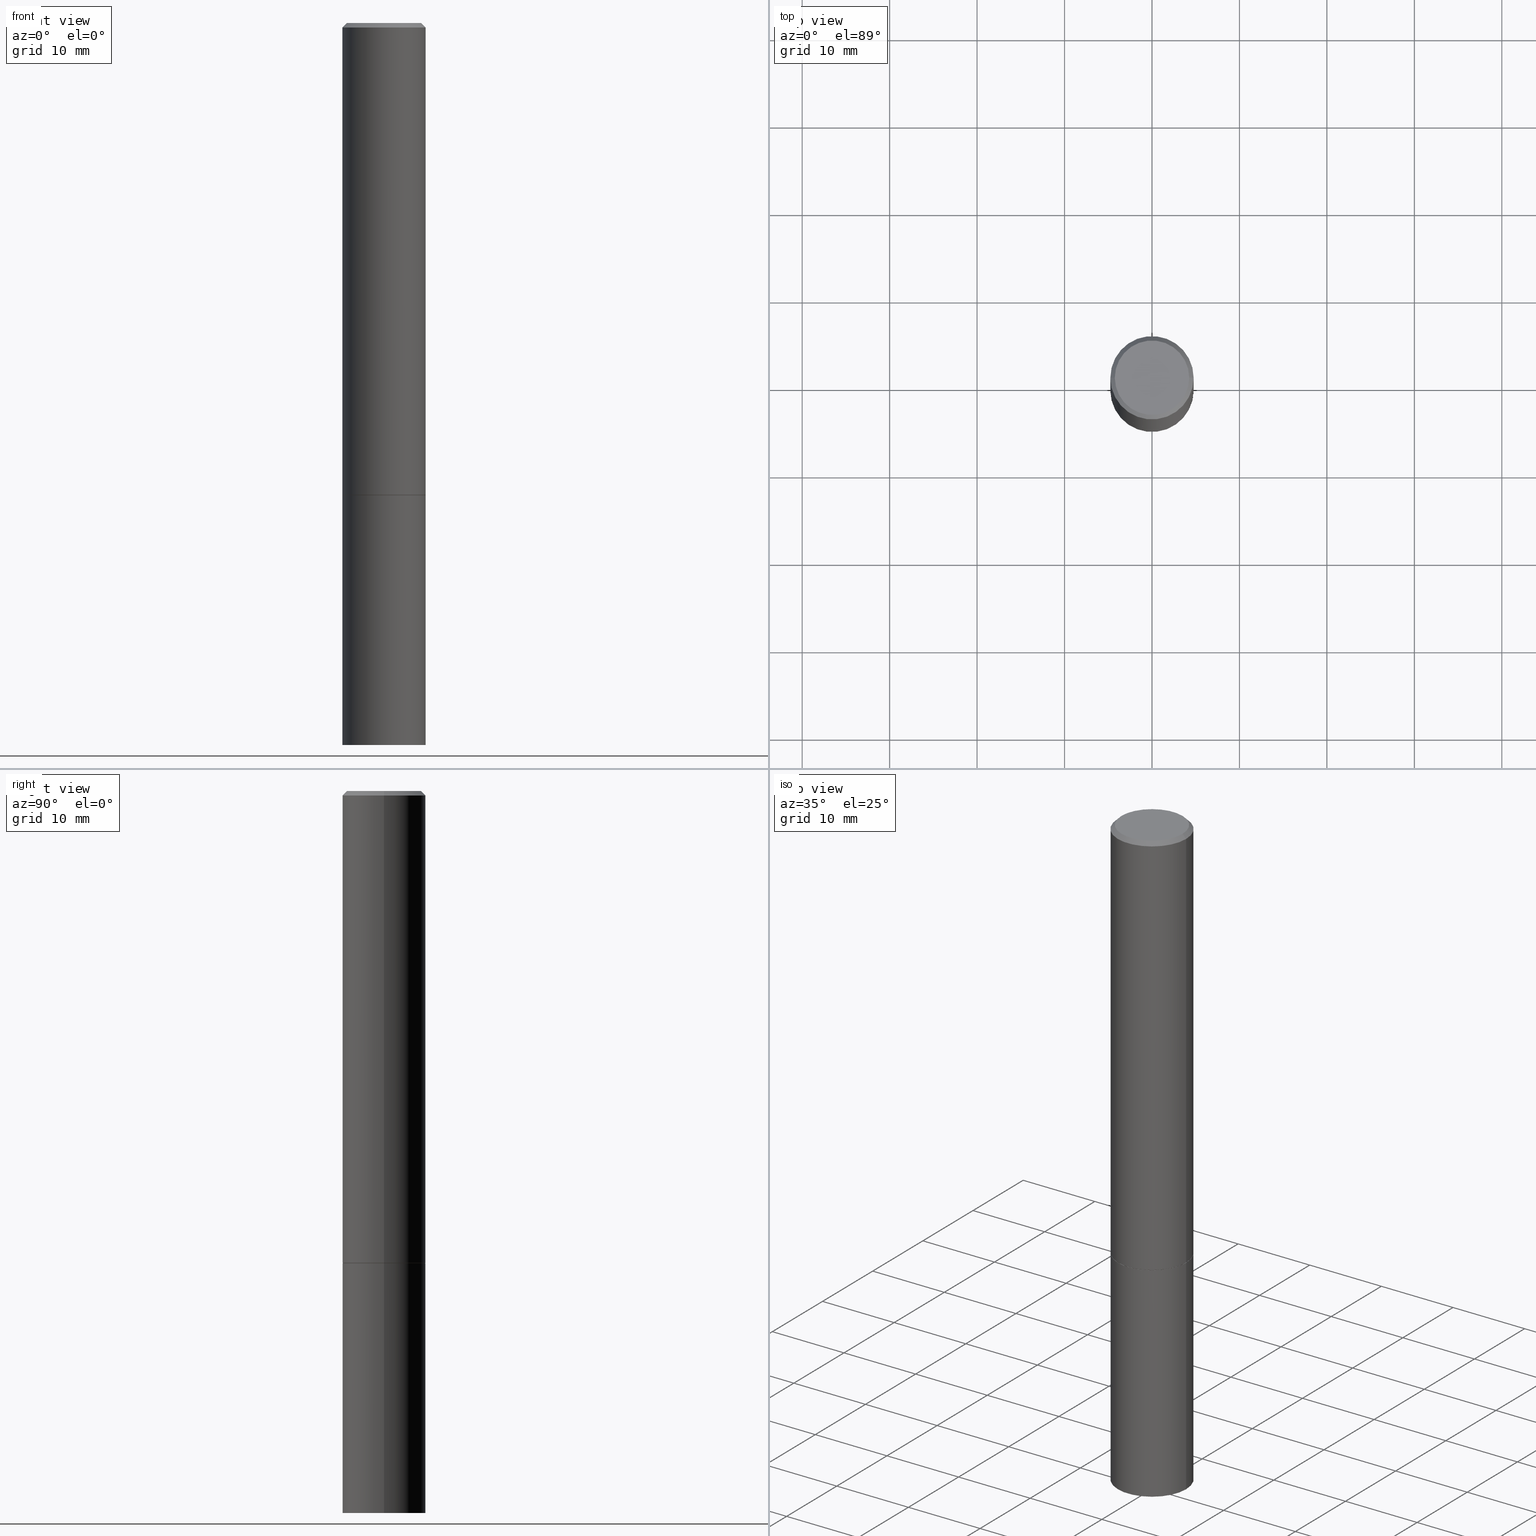
[diagram: canonical four-view strip — front | top / right | iso, engineering-drawing reading convention]
A machine part, canonical four-view strip (front | top / right | iso — engineering-drawing reading convention). The complete STEP part file that produces these views, byte-faithful:
ISO-10303-21;
HEADER;
FILE_DESCRIPTION (( 'STEP AP203' ),
    '1' );
FILE_NAME ('77149.STEP',
    '2024-02-29T15:02:21',
    ( '' ),
    ( '' ),
    'SwSTEP 2.0',
    'SolidWorks 2023',
    '' );
FILE_SCHEMA (( 'CONFIG_CONTROL_DESIGN' ));
ENDSEC;

DATA;
#1 = DIRECTION ( 'NONE',  ( -2.445468806185136597E-29, 3.491481338843145583E-15, 1.000000000000000000 ) ) ;
#2 = CARTESIAN_POINT ( 'NONE',  ( 4.890937612370283668E-31, -6.982962677686305168E-17, -0.02000000000000004205 ) ) ;
#3 = EDGE_CURVE ( 'NONE', #194, #243, #148, .T. ) ;
#4 = CIRCLE ( 'NONE', #205, 0.1864999999999999714 ) ;
#5 = CARTESIAN_POINT ( 'NONE',  ( 5.194175744337229665E-29, -7.415906363702840616E-15, -2.123999999999999666 ) ) ;
#6 = DIRECTION ( 'NONE',  ( -1.000000000000000000, 6.982962677686265133E-15, 0.000000000000000000 ) ) ;
#7 = EDGE_CURVE ( 'NONE', #15, #269, #129, .T. ) ;
#8 = DIRECTION ( 'NONE',  ( 1.000000000000000000, -6.982962677686261189E-15, 0.000000000000000000 ) ) ;
#9 = EDGE_CURVE ( 'NONE', #21, #135, #232, .T. ) ;
#10 = UNCERTAINTY_MEASURE_WITH_UNIT (LENGTH_MEASURE( 1.000000000000000082E-05 ), #32, 'distance_accuracy_value', 'NONE');
#11 = AXIS2_PLACEMENT_3D ( 'NONE', #72, #44, #6 ) ;
#12 = CARTESIAN_POINT ( 'NONE',  ( 5.196621213143415268E-29, -7.419397845041683624E-15, -2.125000000000000000 ) ) ;
#13 = DIRECTION ( 'NONE',  ( -2.445468806185136877E-29, 3.491481338843145188E-15, 1.000000000000000000 ) ) ;
#14 = FACE_OUTER_BOUND ( 'NONE', #266, .T. ) ;
#15 = VERTEX_POINT ( 'NONE', #319 ) ;
#16 = EDGE_CURVE ( 'NONE', #152, #94, #4, .T. ) ;
#17 = VERTEX_POINT ( 'NONE', #69 ) ;
#18 = DIRECTION ( 'NONE',  ( -2.445468806185136597E-29, 3.491481338843145583E-15, 1.000000000000000000 ) ) ;
#19 = ORIENTED_EDGE ( 'NONE', *, *, #229, .T. ) ;
#20 = DIRECTION ( 'NONE',  ( -0.7071067811865353603, 7.493145998870309984E-15, 0.7071067811865595631 ) ) ;
#21 = VERTEX_POINT ( 'NONE', #120 ) ;
#22 = DIRECTION ( 'NONE',  ( -2.445468806185136597E-29, 3.491481338843145583E-15, 1.000000000000000000 ) ) ;
#23 = VERTEX_POINT ( 'NONE', #289 ) ;
#24 = PLANE ( 'NONE',  #359 ) ;
#25 = DATE_AND_TIME ( #93, #337 ) ;
#26 = EDGE_LOOP ( 'NONE', ( #106, #350, #50, #301 ) ) ;
#27 = APPROVAL_ROLE ( '' ) ;
#28 = CARTESIAN_POINT ( 'NONE',  ( -0.1875000000000000278, -8.051088468590765387E-15, -3.250000000000000000 ) ) ;
#29 = AXIS2_PLACEMENT_3D ( 'NONE', #253, #1, #86 ) ;
#30 = CIRCLE ( 'NONE', #226, 0.1875000000000000278 ) ;
#31 = CC_DESIGN_SECURITY_CLASSIFICATION ( #360, ( #308 ) ) ;
#32 =( CONVERSION_BASED_UNIT ( 'INCH', #133 ) LENGTH_UNIT ( ) NAMED_UNIT ( #176 ) );
#33 = EDGE_CURVE ( 'NONE', #358, #243, #177, .T. ) ;
#34 = CC_DESIGN_PERSON_AND_ORGANIZATION_ASSIGNMENT ( #256, #215, ( #244 ) ) ;
#35 = EDGE_CURVE ( 'NONE', #94, #152, #336, .T. ) ;
#36 = CYLINDRICAL_SURFACE ( 'NONE', #104, 0.1874999999999998890 ) ;
#37 = CARTESIAN_POINT ( 'NONE',  ( 0.1864999999999999714, -8.721720384430172617E-15, -2.125000000000000000 ) ) ;
#38 = CARTESIAN_POINT ( 'NONE',  ( 5.196621213143415268E-29, -7.419397845041683624E-15, -2.125000000000000000 ) ) ;
#39 = CARTESIAN_POINT ( 'NONE',  ( 0.1875000000000000278, -8.725211865769015625E-15, -2.123999999999999666 ) ) ;
#40 = AXIS2_PLACEMENT_3D ( 'NONE', #345, #321, #323 ) ;
#41 = DIRECTION ( 'NONE',  ( -2.445468806185136597E-29, 3.491481338843145583E-15, 1.000000000000000000 ) ) ;
#42 = CC_DESIGN_APPROVAL ( #335, ( #244 ) ) ;
#43 = LINE ( 'NONE', #147, #286 ) ;
#44 = DIRECTION ( 'NONE',  ( 2.445468806185136597E-29, -3.491481338843145583E-15, -1.000000000000000000 ) ) ;
#45 = APPROVAL_ROLE ( '' ) ;
#46 = EDGE_CURVE ( 'NONE', #152, #358, #97, .T. ) ;
#47 = DIRECTION ( 'NONE',  ( 2.438088387897960049E-29, -3.491481338843145188E-15, -1.000000000000000000 ) ) ;
#48 = CARTESIAN_POINT ( 'NONE',  ( -1.043851414335219820E-46, 1.490343170380447200E-32, 4.268512490100411279E-18 ) ) ;
#49 = ORIENTED_EDGE ( 'NONE', *, *, #92, .F. ) ;
#50 = ORIENTED_EDGE ( 'NONE', *, *, #277, .F. ) ;
#51 = AXIS2_PLACEMENT_3D ( 'NONE', #364, #260, #320 ) ;
#52 = ORIENTED_EDGE ( 'NONE', *, *, #74, .T. ) ;
#53 = ORIENTED_EDGE ( 'NONE', *, *, #3, .T. ) ;
#54 = DATE_AND_TIME ( #173, #198 ) ;
#55 = CYLINDRICAL_SURFACE ( 'NONE', #29, 0.1875000000000000278 ) ;
#56 = CIRCLE ( 'NONE', #324, 0.1674999999999997602 ) ;
#57 = DATE_AND_TIME ( #310, #275 ) ;
#58 = PERSON_AND_ORGANIZATION_ROLE ( 'creator' ) ;
#59 = DIRECTION ( 'NONE',  ( -2.445468806185136877E-29, 3.491481338843145188E-15, 1.000000000000000000 ) ) ;
#60 = DATE_AND_TIME ( #313, #67 ) ;
#61 = ADVANCED_FACE ( 'NONE', ( #206 ), #77, .F. ) ;
#62 = COORDINATED_UNIVERSAL_TIME_OFFSET ( 5, 0, .BEHIND. ) ;
#63 = PRODUCT ( '77149', '77149', '', ( #169 ) ) ;
#64 = DESIGN_CONTEXT ( 'detailed design', #312, 'design' ) ;
#65 = DIRECTION ( 'NONE',  ( 1.000000000000000000, -6.982962677686266711E-15, 0.000000000000000000 ) ) ;
#66 = CLOSED_SHELL ( 'NONE', ( #114, #362, #150, #303, #68, #267, #172, #61 ) ) ;
#67 = LOCAL_TIME ( 10, 2, 21.00000000000000000, #309 ) ;
#68 = ADVANCED_FACE ( 'NONE', ( #71 ), #36, .T. ) ;
#69 = CARTESIAN_POINT ( 'NONE',  ( 0.1875000000000000278, -1.265661985330639786E-14, -3.250000000000000000 ) ) ;
#70 = CARTESIAN_POINT ( 'NONE',  ( 7.947773620101693940E-29, -1.134731435124022443E-14, -3.250000000000000000 ) ) ;
#71 = FACE_OUTER_BOUND ( 'NONE', #80, .T. ) ;
#72 = CARTESIAN_POINT ( 'NONE',  ( 4.890937612370283668E-31, -6.982962677686305168E-17, -0.02000000000000004205 ) ) ;
#73 = DIRECTION ( 'NONE',  ( -2.445468806185136597E-29, 3.491481338843145583E-15, 1.000000000000000000 ) ) ;
#74 = EDGE_CURVE ( 'NONE', #17, #135, #43, .T. ) ;
#75 = APPROVAL_ROLE ( '' ) ;
#76 = AXIS2_PLACEMENT_3D ( 'NONE', #282, #280, #283 ) ;
#77 = PLANE ( 'NONE',  #40 ) ;
#78 = ORIENTED_EDGE ( 'NONE', *, *, #74, .F. ) ;
#79 = ORIENTED_EDGE ( 'NONE', *, *, #107, .F. ) ;
#80 = EDGE_LOOP ( 'NONE', ( #305, #130, #190, #103 ) ) ;
#81 = AXIS2_PLACEMENT_3D ( 'NONE', #2, #341, #87 ) ;
#82 = ORIENTED_EDGE ( 'NONE', *, *, #261, .T. ) ;
#83 = CARTESIAN_POINT ( 'NONE',  ( 4.890937612370283668E-31, -6.982962677686305168E-17, -0.02000000000000004205 ) ) ;
#84 = COORDINATED_UNIVERSAL_TIME_OFFSET ( 5, 0, .BEHIND. ) ;
#85 = VECTOR ( 'NONE', #203, 39.37007874015748143 ) ;
#86 = DIRECTION ( 'NONE',  ( 1.000000000000000000, -6.982962677686265922E-15, 4.876176775795935793E-29 ) ) ;
#87 = DIRECTION ( 'NONE',  ( 1.000000000000000000, -6.982962677686265133E-15, 0.000000000000000000 ) ) ;
#88 = ADVANCED_FACE ( 'NONE', ( #125 ), #236, .F. ) ;
#89 = AXIS2_PLACEMENT_3D ( 'NONE', #334, #241, #278 ) ;
#90 = CALENDAR_DATE ( 2024, 29, 2 ) ;
#91 = CARTESIAN_POINT ( 'NONE',  ( -0.1874999999999997502, 1.239475875289309935E-15, -0.02000000000000004205 ) ) ;
#92 = EDGE_CURVE ( 'NONE', #135, #21, #268, .T. ) ;
#93 = CALENDAR_DATE ( 2024, 29, 2 ) ;
#94 = VERTEX_POINT ( 'NONE', #221 ) ;
#95 = SHAPE_DEFINITION_REPRESENTATION ( #166, #361 ) ;
#96 = PERSON_AND_ORGANIZATION ( #234, #171 ) ;
#97 = LINE ( 'NONE', #37, #109 ) ;
#98 = APPROVAL_STATUS ( 'not_yet_approved' ) ;
#99 = CARTESIAN_POINT ( 'NONE',  ( 0.000000000000000000, 0.000000000000000000, 0.000000000000000000 ) ) ;
#100 = DIRECTION ( 'NONE',  ( 1.000000000000000000, -6.982962677686269077E-15, 0.000000000000000000 ) ) ;
#101 = DIRECTION ( 'NONE',  ( -1.000000000000000000, 6.982962677686265922E-15, -4.876176775795935793E-29 ) ) ;
#102 = CARTESIAN_POINT ( 'NONE',  ( 0.1874999999999997502, -1.356173001359023494E-15, -0.02000000000000004205 ) ) ;
#103 = ORIENTED_EDGE ( 'NONE', *, *, #168, .F. ) ;
#104 = AXIS2_PLACEMENT_3D ( 'NONE', #292, #73, #293 ) ;
#105 = FACE_OUTER_BOUND ( 'NONE', #240, .T. ) ;
#106 = ORIENTED_EDGE ( 'NONE', *, *, #179, .T. ) ;
#107 = EDGE_CURVE ( 'NONE', #194, #15, #196, .T. ) ;
#108 = EDGE_LOOP ( 'NONE', ( #331, #156, #297, #346 ) ) ;
#109 = VECTOR ( 'NONE', #235, 39.37007874015748854 ) ;
#110 = FACE_OUTER_BOUND ( 'NONE', #238, .T. ) ;
#111 = PERSON_AND_ORGANIZATION ( #234, #171 ) ;
#112 = COORDINATED_UNIVERSAL_TIME_OFFSET ( 5, 0, .BEHIND. ) ;
#113 = CARTESIAN_POINT ( 'NONE',  ( 5.194175744337229665E-29, -7.415906363702840616E-15, -2.123999999999999666 ) ) ;
#114 = ADVANCED_FACE ( 'NONE', ( #300 ), #274, .T. ) ;
#115 = CONICAL_SURFACE ( 'NONE', #175, 0.1874999999999997502, 0.7853981633974469467 ) ;
#116 = APPROVAL_PERSON_ORGANIZATION ( #140, #344, #45 ) ;
#117 = MANIFOLD_SOLID_BREP ( 'Body-Move/Copy2[2]', #66 ) ;
#118 = SECURITY_CLASSIFICATION_LEVEL ( 'unclassified' ) ;
#119 =( LENGTH_UNIT ( ) NAMED_UNIT ( * ) SI_UNIT ( $, .METRE. ) );
#120 = CARTESIAN_POINT ( 'NONE',  ( -0.1875000000000000278, -8.051088468590765387E-15, -2.125000000000000000 ) ) ;
#121 = CIRCLE ( 'NONE', #220, 0.1875000000000000278 ) ;
#122 = ORIENTED_EDGE ( 'NONE', *, *, #261, .F. ) ;
#123 = DIRECTION ( 'NONE',  ( 1.000000000000000000, -6.982962677686265922E-15, 4.875936752492899929E-29 ) ) ;
#124 = CC_DESIGN_DATE_AND_TIME_ASSIGNMENT ( #60, #163, ( #360 ) ) ;
#125 = FACE_OUTER_BOUND ( 'NONE', #181, .T. ) ;
#126 = DIRECTION ( 'NONE',  ( -2.445468806185136597E-29, 3.491481338843145583E-15, 1.000000000000000000 ) ) ;
#127 = CARTESIAN_POINT ( 'NONE',  ( -0.1874999999999997502, 1.239475875289309935E-15, -0.02000000000000004205 ) ) ;
#128 = ORIENTED_EDGE ( 'NONE', *, *, #3, .F. ) ;
#129 = LINE ( 'NONE', #91, #85 ) ;
#130 = ORIENTED_EDGE ( 'NONE', *, *, #366, .T. ) ;
#131 = AXIS2_PLACEMENT_3D ( 'NONE', #264, #354, #189 ) ;
#132 = EDGE_CURVE ( 'NONE', #94, #23, #218, .T. ) ;
#133 = LENGTH_MEASURE_WITH_UNIT ( LENGTH_MEASURE( 0.02539999999999999897 ), #119 );
#134 = VERTEX_POINT ( 'NONE', #28 ) ;
#135 = VERTEX_POINT ( 'NONE', #216 ) ;
#136 =( NAMED_UNIT ( * ) PLANE_ANGLE_UNIT ( ) SI_UNIT ( $, .RADIAN. ) );
#137 = AXIS2_PLACEMENT_3D ( 'NONE', #38, #230, #209 ) ;
#138 = CARTESIAN_POINT ( 'NONE',  ( -0.1874999999999998890, 1.332267629550187060E-15, -9.223003294227942385E-30 ) ) ;
#139 = FACE_OUTER_BOUND ( 'NONE', #272, .T. ) ;
#140 = PERSON_AND_ORGANIZATION ( #234, #171 ) ;
#141 = CONICAL_SURFACE ( 'NONE', #11, 0.1874999999999997502, 0.7853981633974469467 ) ;
#142 = CC_DESIGN_APPROVAL ( #344, ( #360 ) ) ;
#143 = PERSON_AND_ORGANIZATION ( #234, #171 ) ;
#144 = FACE_OUTER_BOUND ( 'NONE', #325, .T. ) ;
#145 = VECTOR ( 'NONE', #287, 39.37007874015748143 ) ;
#146 = AXIS2_PLACEMENT_3D ( 'NONE', #99, #41, #317 ) ;
#147 = CARTESIAN_POINT ( 'NONE',  ( 0.1875000000000000278, -1.309305502066175008E-15, 9.142831454617381013E-30 ) ) ;
#148 = LINE ( 'NONE', #102, #183 ) ;
#149 = ORIENTED_EDGE ( 'NONE', *, *, #107, .T. ) ;
#150 = ADVANCED_FACE ( 'NONE', ( #110 ), #115, .T. ) ;
#151 = CONICAL_SURFACE ( 'NONE', #252, 0.1864999999999999714, 0.7853981633974311816 ) ;
#152 = VERTEX_POINT ( 'NONE', #159 ) ;
#153 = DIRECTION ( 'NONE',  ( -1.000000000000000000, 6.982962677686265922E-15, -4.876176775795935793E-29 ) ) ;
#154 = ORIENTED_EDGE ( 'NONE', *, *, #229, .F. ) ;
#155 = PRODUCT_RELATED_PRODUCT_CATEGORY ( 'detail', '', ( #63 ) ) ;
#156 = ORIENTED_EDGE ( 'NONE', *, *, #132, .T. ) ;
#157 = AXIS2_PLACEMENT_3D ( 'NONE', #326, #348, #322 ) ;
#158 = APPROVAL_STATUS ( 'not_yet_approved' ) ;
#159 = CARTESIAN_POINT ( 'NONE',  ( 0.1864999999999999714, -8.721720384430172617E-15, -2.125000000000000000 ) ) ;
#160 = APPROVAL ( #158, 'UNSPECIFIED' ) ;
#161 = APPROVAL_DATE_TIME ( #54, #160 ) ;
#162 = AXIS2_PLACEMENT_3D ( 'NONE', #70, #291, #8 ) ;
#163 = DATE_TIME_ROLE ( 'classification_date' ) ;
#164 = PERSON_AND_ORGANIZATION ( #234, #171 ) ;
#165 = EDGE_CURVE ( 'NONE', #23, #269, #273, .T. ) ;
#166 = PRODUCT_DEFINITION_SHAPE ( 'NONE', 'NONE',  #244 ) ;
#167 = PERSON_AND_ORGANIZATION_ROLE ( 'design_supplier' ) ;
#168 = EDGE_CURVE ( 'NONE', #269, #243, #279, .T. ) ;
#169 = MECHANICAL_CONTEXT ( 'NONE', #247, 'mechanical' ) ;
#170 = CIRCLE ( 'NONE', #294, 0.1875000000000000278 ) ;
#171 = ORGANIZATION ( 'UNSPECIFIED', 'UNSPECIFIED', '' ) ;
#172 = ADVANCED_FACE ( 'NONE', ( #144 ), #24, .F. ) ;
#173 = CALENDAR_DATE ( 2024, 29, 2 ) ;
#174 = CARTESIAN_POINT ( 'NONE',  ( 0.1874999999999998890, -1.309305502066174022E-15, 9.142831454617374006E-30 ) ) ;
#175 = AXIS2_PLACEMENT_3D ( 'NONE', #83, #306, #363 ) ;
#176 = DIMENSIONAL_EXPONENTS ( 1.000000000000000000, 0.000000000000000000, 0.000000000000000000, 0.000000000000000000, 0.000000000000000000, 0.000000000000000000, 0.000000000000000000 ) ;
#177 = LINE ( 'NONE', #174, #145 ) ;
#178 = EDGE_LOOP ( 'NONE', ( #271, #185, #49, #78 ) ) ;
#179 = EDGE_CURVE ( 'NONE', #358, #23, #121, .T. ) ;
#180 = CARTESIAN_POINT ( 'NONE',  ( 1.309305502066254683E-15, 0.1874999999999886757, -3.250000000000000444 ) ) ;
#181 = EDGE_LOOP ( 'NONE', ( #262, #217 ) ) ;
#182 = AXIS2_PLACEMENT_3D ( 'NONE', #12, #208, #65 ) ;
#183 = VECTOR ( 'NONE', #259, 39.37007874015748143 ) ;
#184 = LOCAL_TIME ( 10, 2, 21.00000000000000000, #186 ) ;
#185 = ORIENTED_EDGE ( 'NONE', *, *, #210, .T. ) ;
#186 = COORDINATED_UNIVERSAL_TIME_OFFSET ( 5, 0, .BEHIND. ) ;
#187 = ORIENTED_EDGE ( 'NONE', *, *, #168, .T. ) ;
#188 = CC_DESIGN_PERSON_AND_ORGANIZATION_ASSIGNMENT ( #284, #58, ( #308 ) ) ;
#189 = DIRECTION ( 'NONE',  ( 1.000000000000000000, -6.982962677686266711E-15, 0.000000000000000000 ) ) ;
#190 = ORIENTED_EDGE ( 'NONE', *, *, #33, .T. ) ;
#191 = APPROVAL_DATE_TIME ( #290, #344 ) ;
#192 = ORIENTED_EDGE ( 'NONE', *, *, #16, .F. ) ;
#193 = DIRECTION ( 'NONE',  ( 1.000000000000000000, -6.982962677686269077E-15, 0.000000000000000000 ) ) ;
#194 = VERTEX_POINT ( 'NONE', #311 ) ;
#195 = DATE_TIME_ROLE ( 'creation_date' ) ;
#196 = CIRCLE ( 'NONE', #89, 0.1674999999999997602 ) ;
#197 = DIRECTION ( 'NONE',  ( -2.445468806185136597E-29, 3.491481338843145583E-15, 1.000000000000000000 ) ) ;
#198 = LOCAL_TIME ( 10, 2, 21.00000000000000000, #112 ) ;
#199 = CARTESIAN_POINT ( 'NONE',  ( -0.1875000000000000278, 1.332267629550188046E-15, -9.223003294227947991E-30 ) ) ;
#200 = FACE_OUTER_BOUND ( 'NONE', #178, .T. ) ;
#201 = AXIS2_PLACEMENT_3D ( 'NONE', #180, #213, #101 ) ;
#202 = ADVANCED_FACE ( 'NONE', ( #139 ), #55, .T. ) ;
#203 = DIRECTION ( 'NONE',  ( -0.7071067811865465735, 2.468850131082246805E-15, -0.7071067811865484609 ) ) ;
#204 = DIRECTION ( 'NONE',  ( 1.000000000000000000, -6.982962677686261189E-15, 0.000000000000000000 ) ) ;
#205 = AXIS2_PLACEMENT_3D ( 'NONE', #257, #315, #100 ) ;
#206 = FACE_OUTER_BOUND ( 'NONE', #330, .T. ) ;
#207 = PERSON_AND_ORGANIZATION_ROLE ( 'design_owner' ) ;
#208 = DIRECTION ( 'NONE',  ( -2.445468806185136597E-29, 3.491481338843145583E-15, 1.000000000000000000 ) ) ;
#209 = DIRECTION ( 'NONE',  ( 1.000000000000000000, -6.982962677686269077E-15, 0.000000000000000000 ) ) ;
#210 = EDGE_CURVE ( 'NONE', #134, #21, #223, .T. ) ;
#211 = AXIS2_PLACEMENT_3D ( 'NONE', #295, #47, #153 ) ;
#212 = ORIENTED_EDGE ( 'NONE', *, *, #35, .F. ) ;
#213 = DIRECTION ( 'NONE',  ( 2.438088387897960049E-29, -3.491481338843145188E-15, -1.000000000000000000 ) ) ;
#214 = ORIENTED_EDGE ( 'NONE', *, *, #46, .T. ) ;
#215 = PERSON_AND_ORGANIZATION_ROLE ( 'creator' ) ;
#216 = CARTESIAN_POINT ( 'NONE',  ( 0.1875000000000000278, -8.728703347107858632E-15, -2.125000000000000000 ) ) ;
#217 = ORIENTED_EDGE ( 'NONE', *, *, #9, .T. ) ;
#218 = LINE ( 'NONE', #245, #307 ) ;
#219 = ORIENTED_EDGE ( 'NONE', *, *, #9, .F. ) ;
#220 = AXIS2_PLACEMENT_3D ( 'NONE', #113, #197, #342 ) ;
#221 = CARTESIAN_POINT ( 'NONE',  ( -0.1864999999999999714, -6.088937188500874381E-15, -2.125000000000000000 ) ) ;
#222 = CC_DESIGN_PERSON_AND_ORGANIZATION_ASSIGNMENT ( #143, #298, ( #360 ) ) ;
#223 = LINE ( 'NONE', #199, #343 ) ;
#224 = AXIS2_PLACEMENT_3D ( 'NONE', #333, #22, #193 ) ;
#225 = CC_DESIGN_APPROVAL ( #160, ( #308 ) ) ;
#226 = AXIS2_PLACEMENT_3D ( 'NONE', #5, #239, #288 ) ;
#227 = ADVANCED_FACE ( 'NONE', ( #200 ), #251, .T. ) ;
#228 = ORIENTED_EDGE ( 'NONE', *, *, #366, .F. ) ;
#229 = EDGE_CURVE ( 'NONE', #15, #194, #56, .T. ) ;
#230 = DIRECTION ( 'NONE',  ( -2.445468806185136597E-29, 3.491481338843145583E-15, 1.000000000000000000 ) ) ;
#231 = FACE_OUTER_BOUND ( 'NONE', #26, .T. ) ;
#232 = CIRCLE ( 'NONE', #182, 0.1875000000000000278 ) ;
#233 = DIRECTION ( 'NONE',  ( 1.000000000000000000, -6.982962677686269077E-15, 0.000000000000000000 ) ) ;
#234 = PERSON ( 'UNSPECIFIED', 'UNSPECIFIED', 'UNSPECIFIED', ('UNSPECIFIED'), ('UNSPECIFIED'), ('UNSPECIFIED') ) ;
#235 = DIRECTION ( 'NONE',  ( 0.7071067811865353603, -2.468850131082130054E-15, 0.7071067811865595631 ) ) ;
#236 = PLANE ( 'NONE',  #211 ) ;
#237 = DIRECTION ( 'NONE',  ( -2.445468806185136597E-29, 3.491481338843145583E-15, 1.000000000000000000 ) ) ;
#238 = EDGE_LOOP ( 'NONE', ( #79, #53, #242, #304 ) ) ;
#239 = DIRECTION ( 'NONE',  ( -2.445468806185136597E-29, 3.491481338843145583E-15, 1.000000000000000000 ) ) ;
#240 = EDGE_LOOP ( 'NONE', ( #353, #122 ) ) ;
#241 = DIRECTION ( 'NONE',  ( -2.445468806185136597E-29, 3.491481338843145583E-15, 1.000000000000000000 ) ) ;
#242 = ORIENTED_EDGE ( 'NONE', *, *, #277, .T. ) ;
#243 = VERTEX_POINT ( 'NONE', #258 ) ;
#244 = PRODUCT_DEFINITION ( 'UNKNOWN', '', #308, #64 ) ;
#245 = CARTESIAN_POINT ( 'NONE',  ( -0.1864999999999999714, -6.094235642849095994E-15, -2.125000000000000000 ) ) ;
#246 = FACE_OUTER_BOUND ( 'NONE', #357, .T. ) ;
#247 = APPLICATION_CONTEXT ( 'configuration controlled 3d designs of mechanical parts and assemblies' ) ;
#248 = VECTOR ( 'NONE', #250, 39.37007874015748143 ) ;
#249 = DIRECTION ( 'NONE',  ( -2.438088387897960049E-29, 3.491481338843145188E-15, 1.000000000000000000 ) ) ;
#250 = DIRECTION ( 'NONE',  ( -2.445468806185136877E-29, 3.491481338843145188E-15, 1.000000000000000000 ) ) ;
#251 = CYLINDRICAL_SURFACE ( 'NONE', #51, 0.1875000000000000278 ) ;
#252 = AXIS2_PLACEMENT_3D ( 'NONE', #351, #18, #233 ) ;
#253 = CARTESIAN_POINT ( 'NONE',  ( 0.000000000000000000, 0.000000000000000000, 0.000000000000000000 ) ) ;
#254 = APPROVAL_PERSON_ORGANIZATION ( #164, #160, #27 ) ;
#255 = CLOSED_SHELL ( 'NONE', ( #227, #299, #88, #202 ) ) ;
#256 = PERSON_AND_ORGANIZATION ( #234, #171 ) ;
#257 = CARTESIAN_POINT ( 'NONE',  ( 5.196621213143415268E-29, -7.419397845041683624E-15, -2.125000000000000000 ) ) ;
#258 = CARTESIAN_POINT ( 'NONE',  ( 0.1874999999999997502, -1.356173001359023494E-15, -0.02000000000000004205 ) ) ;
#259 = DIRECTION ( 'NONE',  ( 0.7071067811865465735, -7.319954787623252890E-15, -0.7071067811865484609 ) ) ;
#260 = DIRECTION ( 'NONE',  ( -2.445468806185136597E-29, 3.491481338843145583E-15, 1.000000000000000000 ) ) ;
#261 = EDGE_CURVE ( 'NONE', #134, #17, #314, .T. ) ;
#262 = ORIENTED_EDGE ( 'NONE', *, *, #92, .T. ) ;
#263 = CARTESIAN_POINT ( 'NONE',  ( 7.947773620101693940E-29, -1.134731435124022443E-14, -3.250000000000000000 ) ) ;
#264 = CARTESIAN_POINT ( 'NONE',  ( 5.196621213143415268E-29, -7.419397845041683624E-15, -2.125000000000000000 ) ) ;
#265 = CYLINDRICAL_SURFACE ( 'NONE', #146, 0.1874999999999998890 ) ;
#266 = EDGE_LOOP ( 'NONE', ( #347, #327, #214, #228 ) ) ;
#267 = ADVANCED_FACE ( 'NONE', ( #14 ), #151, .T. ) ;
#268 = CIRCLE ( 'NONE', #131, 0.1875000000000000278 ) ;
#269 = VERTEX_POINT ( 'NONE', #127 ) ;
#270 = APPROVAL_PERSON_ORGANIZATION ( #111, #335, #75 ) ;
#271 = ORIENTED_EDGE ( 'NONE', *, *, #356, .T. ) ;
#272 = EDGE_LOOP ( 'NONE', ( #329, #82, #52, #219 ) ) ;
#273 = LINE ( 'NONE', #138, #248 ) ;
#274 = CONICAL_SURFACE ( 'NONE', #224, 0.1864999999999999714, 0.7853981633974311816 ) ;
#275 = LOCAL_TIME ( 10, 2, 21.00000000000000000, #84 ) ;
#276 = PERSON_AND_ORGANIZATION ( #234, #171 ) ;
#277 = EDGE_CURVE ( 'NONE', #243, #269, #316, .T. ) ;
#278 = DIRECTION ( 'NONE',  ( 1.000000000000000000, -6.982962677686265922E-15, 4.875936752492899929E-29 ) ) ;
#279 = CIRCLE ( 'NONE', #81, 0.1874999999999997502 ) ;
#280 = DIRECTION ( 'NONE',  ( 0.000000000000000000, 0.000000000000000000, 1.000000000000000000 ) ) ;
#281 = APPROVAL_DATE_TIME ( #25, #335 ) ;
#282 = CARTESIAN_POINT ( 'NONE',  ( 0.000000000000000000, 0.000000000000000000, 0.000000000000000000 ) ) ;
#283 = DIRECTION ( 'NONE',  ( 1.000000000000000000, 0.000000000000000000, 0.000000000000000000 ) ) ;
#284 = PERSON_AND_ORGANIZATION ( #234, #171 ) ;
#285 = CC_DESIGN_DATE_AND_TIME_ASSIGNMENT ( #57, #195, ( #244 ) ) ;
#286 = VECTOR ( 'NONE', #13, 39.37007874015748143 ) ;
#287 = DIRECTION ( 'NONE',  ( -2.445468806185136877E-29, 3.491481338843145188E-15, 1.000000000000000000 ) ) ;
#288 = DIRECTION ( 'NONE',  ( 1.000000000000000000, -6.982962677686266711E-15, 0.000000000000000000 ) ) ;
#289 = CARTESIAN_POINT ( 'NONE',  ( -0.1875000000000000278, -2.410600365689662531E-15, -2.123999999999999666 ) ) ;
#290 = DATE_AND_TIME ( #90, #184 ) ;
#291 = DIRECTION ( 'NONE',  ( -2.445468806185136597E-29, 3.491481338843145583E-15, 1.000000000000000000 ) ) ;
#292 = CARTESIAN_POINT ( 'NONE',  ( 0.000000000000000000, 0.000000000000000000, 0.000000000000000000 ) ) ;
#293 = DIRECTION ( 'NONE',  ( 1.000000000000000000, -6.982962677686265922E-15, 4.876176775795935793E-29 ) ) ;
#294 = AXIS2_PLACEMENT_3D ( 'NONE', #263, #126, #204 ) ;
#295 = CARTESIAN_POINT ( 'NONE',  ( 1.309305502066226876E-15, 0.1874999999999926170, -2.125000000000000444 ) ) ;
#296 = PLANE ( 'NONE',  #201 ) ;
#297 = ORIENTED_EDGE ( 'NONE', *, *, #179, .F. ) ;
#298 = PERSON_AND_ORGANIZATION_ROLE ( 'classification_officer' ) ;
#299 = ADVANCED_FACE ( 'NONE', ( #105 ), #296, .T. ) ;
#300 = FACE_OUTER_BOUND ( 'NONE', #108, .T. ) ;
#301 = ORIENTED_EDGE ( 'NONE', *, *, #33, .F. ) ;
#302 =( NAMED_UNIT ( * ) SI_UNIT ( $, .STERADIAN. ) SOLID_ANGLE_UNIT ( ) );
#303 = ADVANCED_FACE ( 'NONE', ( #246 ), #141, .T. ) ;
#304 = ORIENTED_EDGE ( 'NONE', *, *, #7, .F. ) ;
#305 = ORIENTED_EDGE ( 'NONE', *, *, #165, .F. ) ;
#306 = DIRECTION ( 'NONE',  ( 2.445468806185136597E-29, -3.491481338843145583E-15, -1.000000000000000000 ) ) ;
#307 = VECTOR ( 'NONE', #20, 39.37007874015748854 ) ;
#308 = PRODUCT_DEFINITION_FORMATION_WITH_SPECIFIED_SOURCE ( 'ANY', '', #63, .NOT_KNOWN. ) ;
#309 = COORDINATED_UNIVERSAL_TIME_OFFSET ( 5, 0, .BEHIND. ) ;
#310 = CALENDAR_DATE ( 2024, 29, 2 ) ;
#311 = CARTESIAN_POINT ( 'NONE',  ( 0.1674999999999997602, -1.252653207992876711E-15, 4.268512490108880748E-18 ) ) ;
#312 = APPLICATION_CONTEXT ( 'configuration controlled 3d designs of mechanical parts and assemblies' ) ;
#313 = CALENDAR_DATE ( 2024, 29, 2 ) ;
#314 = CIRCLE ( 'NONE', #162, 0.1875000000000000278 ) ;
#315 = DIRECTION ( 'NONE',  ( -2.445468806185136597E-29, 3.491481338843145583E-15, 1.000000000000000000 ) ) ;
#316 = CIRCLE ( 'NONE', #157, 0.1874999999999997502 ) ;
#317 = DIRECTION ( 'NONE',  ( 1.000000000000000000, -6.982962677686265922E-15, 4.876176775795935793E-29 ) ) ;
#318 =( GEOMETRIC_REPRESENTATION_CONTEXT ( 3 ) GLOBAL_UNCERTAINTY_ASSIGNED_CONTEXT ( ( #10 ) ) GLOBAL_UNIT_ASSIGNED_CONTEXT ( ( #32, #136, #302 ) ) REPRESENTATION_CONTEXT ( 'NONE', 'WORKASPACE' ) );
#319 = CARTESIAN_POINT ( 'NONE',  ( -0.1674999999999997602, 1.204561061900878878E-15, 4.268512490092109750E-18 ) ) ;
#320 = DIRECTION ( 'NONE',  ( 1.000000000000000000, -6.982962677686265922E-15, 4.876176775795935793E-29 ) ) ;
#321 = DIRECTION ( 'NONE',  ( 2.438088387897960049E-29, -3.491481338843145188E-15, -1.000000000000000000 ) ) ;
#322 = DIRECTION ( 'NONE',  ( 1.000000000000000000, -6.982962677686265133E-15, 0.000000000000000000 ) ) ;
#323 = DIRECTION ( 'NONE',  ( -1.000000000000000000, 6.982962677686265922E-15, -4.876176775795935793E-29 ) ) ;
#324 = AXIS2_PLACEMENT_3D ( 'NONE', #48, #237, #123 ) ;
#325 = EDGE_LOOP ( 'NONE', ( #192, #212 ) ) ;
#326 = CARTESIAN_POINT ( 'NONE',  ( 4.890937612370283668E-31, -6.982962677686305168E-17, -0.02000000000000004205 ) ) ;
#327 = ORIENTED_EDGE ( 'NONE', *, *, #35, .T. ) ;
#328 = APPLICATION_PROTOCOL_DEFINITION ( 'international standard', 'config_control_design', 1994, #312 ) ;
#329 = ORIENTED_EDGE ( 'NONE', *, *, #210, .F. ) ;
#330 = EDGE_LOOP ( 'NONE', ( #19, #149 ) ) ;
#331 = ORIENTED_EDGE ( 'NONE', *, *, #16, .T. ) ;
#332 = CARTESIAN_POINT ( 'NONE',  ( 5.196621213143415268E-29, -7.419397845041683624E-15, -2.125000000000000000 ) ) ;
#333 = CARTESIAN_POINT ( 'NONE',  ( 5.196621213143415268E-29, -7.419397845041683624E-15, -2.125000000000000000 ) ) ;
#334 = CARTESIAN_POINT ( 'NONE',  ( -1.043851414335219820E-46, 1.490343170380447200E-32, 4.268512490100411279E-18 ) ) ;
#335 = APPROVAL ( #98, 'UNSPECIFIED' ) ;
#336 = CIRCLE ( 'NONE', #137, 0.1864999999999999714 ) ;
#337 = LOCAL_TIME ( 10, 2, 21.00000000000000000, #62 ) ;
#338 = CC_DESIGN_PERSON_AND_ORGANIZATION_ASSIGNMENT ( #96, #207, ( #63 ) ) ;
#339 = DIRECTION ( 'NONE',  ( 1.000000000000000000, -6.982962677686265922E-15, 4.876176775795935793E-29 ) ) ;
#340 = APPLICATION_PROTOCOL_DEFINITION ( 'international standard', 'config_control_design', 1994, #247 ) ;
#341 = DIRECTION ( 'NONE',  ( -2.445468806185136597E-29, 3.491481338843145583E-15, 1.000000000000000000 ) ) ;
#342 = DIRECTION ( 'NONE',  ( 1.000000000000000000, -6.982962677686266711E-15, 0.000000000000000000 ) ) ;
#343 = VECTOR ( 'NONE', #59, 39.37007874015748143 ) ;
#344 = APPROVAL ( #355, 'UNSPECIFIED' ) ;
#345 = CARTESIAN_POINT ( 'NONE',  ( 1.169646248512447820E-15, 0.1674999999999997602, -5.826888680111757675E-16 ) ) ;
#346 = ORIENTED_EDGE ( 'NONE', *, *, #46, .F. ) ;
#347 = ORIENTED_EDGE ( 'NONE', *, *, #132, .F. ) ;
#348 = DIRECTION ( 'NONE',  ( -2.445468806185136597E-29, 3.491481338843145583E-15, 1.000000000000000000 ) ) ;
#349 = CC_DESIGN_PERSON_AND_ORGANIZATION_ASSIGNMENT ( #276, #167, ( #308 ) ) ;
#350 = ORIENTED_EDGE ( 'NONE', *, *, #165, .T. ) ;
#351 = CARTESIAN_POINT ( 'NONE',  ( 5.196621213143415268E-29, -7.419397845041683624E-15, -2.125000000000000000 ) ) ;
#352 = ORIENTED_EDGE ( 'NONE', *, *, #7, .T. ) ;
#353 = ORIENTED_EDGE ( 'NONE', *, *, #356, .F. ) ;
#354 = DIRECTION ( 'NONE',  ( -2.445468806185136597E-29, 3.491481338843145583E-15, 1.000000000000000000 ) ) ;
#355 = APPROVAL_STATUS ( 'not_yet_approved' ) ;
#356 = EDGE_CURVE ( 'NONE', #17, #134, #170, .T. ) ;
#357 = EDGE_LOOP ( 'NONE', ( #128, #154, #352, #187 ) ) ;
#358 = VERTEX_POINT ( 'NONE', #39 ) ;
#359 = AXIS2_PLACEMENT_3D ( 'NONE', #332, #249, #339 ) ;
#360 = SECURITY_CLASSIFICATION ( '', '', #118 ) ;
#361 = ADVANCED_BREP_SHAPE_REPRESENTATION ( '77149', ( #365, #117, #76 ), #318 ) ;
#362 = ADVANCED_FACE ( 'NONE', ( #231 ), #265, .T. ) ;
#363 = DIRECTION ( 'NONE',  ( -1.000000000000000000, 6.982962677686265133E-15, 0.000000000000000000 ) ) ;
#364 = CARTESIAN_POINT ( 'NONE',  ( 0.000000000000000000, 0.000000000000000000, 0.000000000000000000 ) ) ;
#365 = MANIFOLD_SOLID_BREP ( 'Body-Move/Copy2[1]', #255 ) ;
#366 = EDGE_CURVE ( 'NONE', #23, #358, #30, .T. ) ;
ENDSEC;
END-ISO-10303-21;
